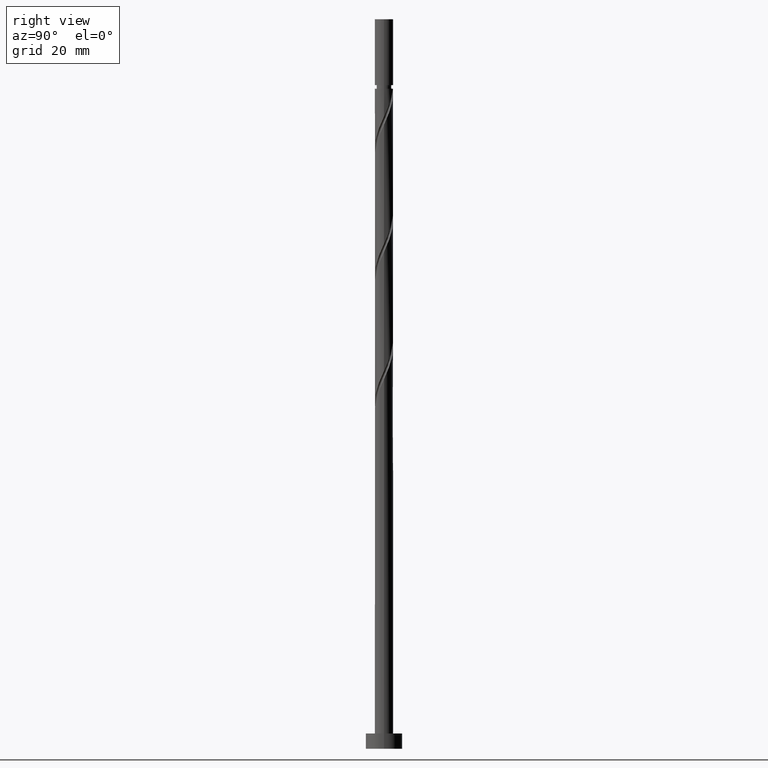
[diagram: clean part render]
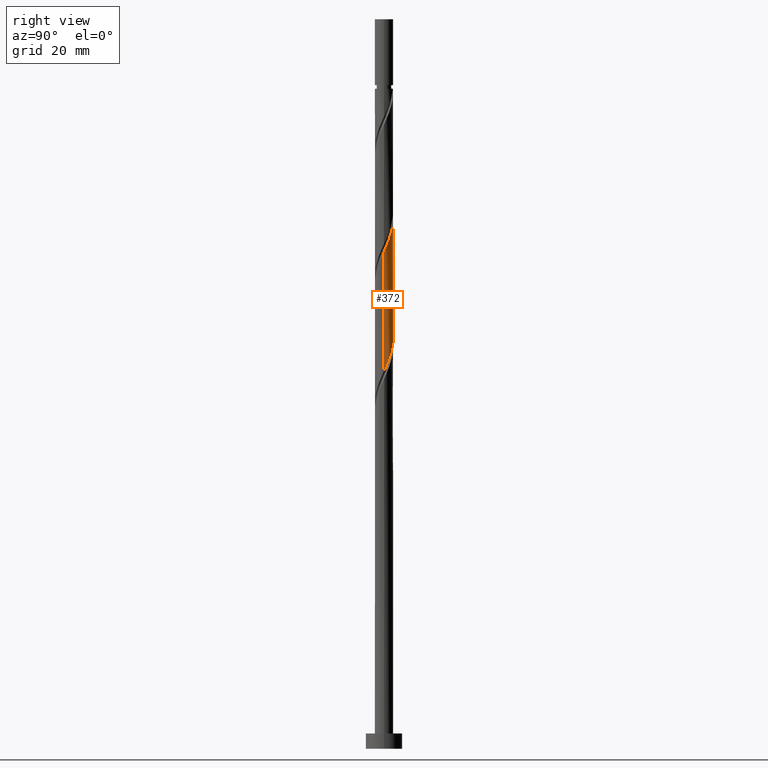
[diagram: same view with one face highlighted and labeled with its STEP entity id]
A machine part, right view. The second image highlights one B-rep face of the part: STEP entity #372.
In plain terms, the highlighted cylindrical surface (edge-blend (fillet) strip) has radius 3 mm, axis along (-0, -0, -1).
Its self-contained STEP definition (entity closure, byte-faithful):
#2 = CARTESIAN_POINT ( 'NONE',  ( -2.177300491905833191, 2.095722369502527993, 178.5441644514406505 ) ) ;
#11 = CARTESIAN_POINT ( 'NONE',  ( 2.537251308848762488, 1.600736016882631674, 166.5249336822098769 ) ) ;
#13 = ORIENTED_EDGE ( 'NONE', *, *, #762, .F. ) ;
#21 = LINE ( 'NONE', #609, #182 ) ;
#30 = CARTESIAN_POINT ( 'NONE',  ( -3.000000000000006661, 0.2437693156111282178, 183.0867982484568302 ) ) ;
#174 = CARTESIAN_POINT ( 'NONE',  ( -2.901834587494014794, 0.8438280090813001788, 181.7492926565687696 ) ) ;
#182 = VECTOR ( 'NONE', #571, 1000.000000000000000 ) ;
#200 = CARTESIAN_POINT ( 'NONE',  ( -2.080442193850956301, 2.161425519892975711, 139.2813439386200400 ) ) ;
#208 = CARTESIAN_POINT ( 'NONE',  ( -1.817997620638346579, 2.414036937049630627, 138.4800618873380245 ) ) ;
#212 = AXIS2_PLACEMENT_3D ( 'NONE', #619, #366, #796 ) ;
#291 = CARTESIAN_POINT ( 'NONE',  ( -2.960644198141485717, 0.4843407189274820390, 182.5505747078508421 ) ) ;
#303 = CARTESIAN_POINT ( 'NONE',  ( 1.187453060654103831, 2.778964719248856241, 170.5313439386201253 ) ) ;
#313 = CARTESIAN_POINT ( 'NONE',  ( -2.615571287713478021, 1.513762372691146441, 180.1467285540047101 ) ) ;
#321 = CARTESIAN_POINT ( 'NONE',  ( 3.000000000000004885, 1.136651328529780996E-15, 162.7931656524717994 ) ) ;
#329 = CARTESIAN_POINT ( 'NONE',  ( -2.731615850633949183, 1.292657931028937224, 141.6851900924662573 ) ) ;
#362 = ORIENTED_EDGE ( 'NONE', *, *, #1415, .F. ) ;
#366 = DIRECTION ( 'NONE',  ( -0.000000000000000000, -0.000000000000000000, -1.000000000000000000 ) ) ;
#372 = ADVANCED_FACE ( 'NONE', ( #1353 ), #475, .T. ) ;
#406 = VERTEX_POINT ( 'NONE', #628 ) ;
#428 = EDGE_CURVE ( 'NONE', #731, #1399, #1364, .T. ) ;
#446 = CARTESIAN_POINT ( 'NONE',  ( -2.758702937603747074, 1.178795190886223754, 180.9480106052868109 ) ) ;
#465 = CARTESIAN_POINT ( 'NONE',  ( -1.894896698789863443, 2.325804484670908501, 177.7428824001585781 ) ) ;
#475 = CYLINDRICAL_SURFACE ( 'NONE', #212, 3.000000000000000444 ) ;
#489 = ORIENTED_EDGE ( 'NONE', *, *, #428, .T. ) ;
#490 = CARTESIAN_POINT ( 'NONE',  ( 0.2400118315905273025, 3.012488008736832867, 133.6723695796457321 ) ) ;
#519 = CARTESIAN_POINT ( 'NONE',  ( 2.901834587494012130, 0.8438280090812966261, 125.6595490668251927 ) ) ;
#545 =( BOUNDED_CURVE ( )  B_SPLINE_CURVE ( 2, ( #1290, #596, #1734, #1182, #1580, #878, #11, #1001, #588, #1571, #742, #303, #1151, #1724, #1307, #1443, #1316, #1168, #1142, #1709, #465, #2, #580, #313, #446, #174, #291, #30, #1598 ),
 .UNSPECIFIED., .F., .T. ) 
 B_SPLINE_CURVE_WITH_KNOTS ( ( 3, 2, 2, 2, 2, 2, 2, 2, 2, 2, 2, 2, 2, 2, 3 ),
 ( 0.4295271625973838270, 0.4326923076923077094, 0.4423076923076922906, 0.4519230769230768718, 0.4615384615384615641, 0.4711538461538461453, 0.4807692307692307265, 0.4903846153846154188, 0.5000000000000000000, 0.5096153846153845812, 0.5192307692307691624, 0.5288461538461538547, 0.5384615384615384359, 0.5480769230769231282, 0.5545271625973835494 ),
 .UNSPECIFIED. ) 
 CURVE ( )  GEOMETRIC_REPRESENTATION_ITEM ( )  RATIONAL_B_SPLINE_CURVE ( ( 0.9061636035682891777, 0.9069090390690778269, 0.9090909090909340406, 0.9024626128164375816, 0.9090909090909340406, 0.9024626128164375816, 0.9090909090909340406, 0.9024626128164375816, 0.9090909090909340406, 0.9024626128164375816, 0.9090909090909340406, 0.9024626128164375816, 0.9090909090909340406, 0.9024626128164375816, 0.9090909090909340406, 0.9024626128164375816, 0.9090909090909340406, 0.9024626128164375816, 0.9090909090909340406, 0.9024626128164375816, 0.9090909090909340406, 0.9024626128164375816, 0.9090909090909340406, 0.9024626128164375816, 0.9090909090909340406, 0.9024626128164375816, 0.9090909090909340406, 0.9046444828382939063, 0.9061636035682889556 ) ) 
 REPRESENTATION_ITEM ( '' )  );
#571 = DIRECTION ( 'NONE',  ( -0.000000000000000000, -0.000000000000000000, -1.000000000000000000 ) ) ;
#580 = CARTESIAN_POINT ( 'NONE',  ( -2.396435889809656050, 1.804742371096836884, 179.3454465027226377 ) ) ;
#588 = CARTESIAN_POINT ( 'NONE',  ( 2.080442193850960741, 2.161425519892978375, 168.1274977847740217 ) ) ;
#596 = CARTESIAN_POINT ( 'NONE',  ( 3.000000000000003997, 0.1193193910103235722, 163.0573365681047733 ) ) ;
#609 = CARTESIAN_POINT ( 'NONE',  ( -3.000000000000000444, 0.000000000000000000, 239.0000000000000284 ) ) ;
#619 = CARTESIAN_POINT ( 'NONE',  ( 0.000000000000000000, 0.000000000000000000, 239.0000000000000284 ) ) ;
#628 = CARTESIAN_POINT ( 'NONE',  ( -3.000000000000004885, -2.946319891057457926E-15, 183.6264989858051422 ) ) ;
#655 = DIRECTION ( 'NONE',  ( -0.000000000000000000, -0.000000000000000000, -1.000000000000000000 ) ) ;
#661 =( BOUNDED_CURVE ( )  B_SPLINE_CURVE ( 2, ( #1464, #1357, #756, #1180, #918, #329, #910, #1485, #200, #208, #774, #926, #1339, #1202, #1768, #490, #1062, #1349, #1793, #1257, #1379, #1218, #1784, #673, #1230, #519, #1239, #1539, #955 ),
 .UNSPECIFIED., .F., .T. ) 
 B_SPLINE_CURVE_WITH_KNOTS ( ( 3, 2, 2, 2, 2, 2, 2, 2, 2, 2, 2, 2, 2, 2, 3 ),
 ( 0.6795271625973833274, 0.6826923076923077094, 0.6923076923076922906, 0.7019230769230768718, 0.7115384615384615641, 0.7211538461538461453, 0.7307692307692307265, 0.7403846153846154188, 0.7500000000000000000, 0.7596153846153845812, 0.7692307692307692735, 0.7788461538461538547, 0.7884615384615384359, 0.7980769230769231282, 0.8045271625973834384 ),
 .UNSPECIFIED. ) 
 CURVE ( )  GEOMETRIC_REPRESENTATION_ITEM ( )  RATIONAL_B_SPLINE_CURVE ( ( 0.9061636035682834045, 0.9069090390690719428, 0.9090909090909286006, 0.9024626128164319194, 0.9090909090909286006, 0.9024626128164319194, 0.9090909090909286006, 0.9024626128164319194, 0.9090909090909286006, 0.9024626128164319194, 0.9090909090909286006, 0.9024626128164319194, 0.9090909090909286006, 0.9024626128164319194, 0.9090909090909286006, 0.9024626128164319194, 0.9090909090909286006, 0.9024626128164319194, 0.9090909090909286006, 0.9024626128164319194, 0.9090909090909286006, 0.9024626128164319194, 0.9090909090909286006, 0.9024626128164319194, 0.9090909090909286006, 0.9024626128164319194, 0.9090909090909286006, 0.9046444828382884662, 0.9061636035682835155 ) ) 
 REPRESENTATION_ITEM ( '' )  );
#673 = CARTESIAN_POINT ( 'NONE',  ( 2.615571287713475801, 1.513762372691141112, 127.2621131693893233 ) ) ;
#731 = VERTEX_POINT ( 'NONE', #321 ) ;
#740 = EDGE_CURVE ( 'NONE', #406, #935, #21, .T. ) ;
#742 = CARTESIAN_POINT ( 'NONE',  ( 1.502725340646227759, 2.596500828149243656, 169.7300618873380245 ) ) ;
#756 = CARTESIAN_POINT ( 'NONE',  ( -2.990523579387028619, 0.2382618751084444875, 144.0890362463123608 ) ) ;
#762 = EDGE_CURVE ( 'NONE', #731, #406, #545, .T. ) ;
#774 = CARTESIAN_POINT ( 'NONE',  ( -1.502725340646223096, 2.596500828149240103, 137.6787798360559520 ) ) ;
#796 = DIRECTION ( 'NONE',  ( -1.000000000000000000, 0.000000000000000000, 0.000000000000000000 ) ) ;
#878 = CARTESIAN_POINT ( 'NONE',  ( 2.731615850633953624, 1.292657931028937224, 165.7236516309277476 ) ) ;
#910 = CARTESIAN_POINT ( 'NONE',  ( -2.537251308848757603, 1.600736016882629231, 140.8839080411841849 ) ) ;
#918 = CARTESIAN_POINT ( 'NONE',  ( -2.846604600309527111, 0.9470175550097439388, 142.4864721437482160 ) ) ;
#926 = CARTESIAN_POINT ( 'NONE',  ( -1.187453060654100945, 2.778964719248853132, 136.8774977847739081 ) ) ;
#935 = VERTEX_POINT ( 'NONE', #1189 ) ;
#955 = CARTESIAN_POINT ( 'NONE',  ( 3.000000000000000000, 4.471825621452718056E-15, 123.7823427375888770 ) ) ;
#1001 = CARTESIAN_POINT ( 'NONE',  ( 2.342886767063572240, 1.908814102736323015, 167.3262157334918641 ) ) ;
#1054 = CARTESIAN_POINT ( 'NONE',  ( 3.000000000000000000, 4.471825621452718056E-15, 123.7823427375888770 ) ) ;
#1062 = CARTESIAN_POINT ( 'NONE',  ( 0.5969924622639739553, 2.939999999999999503, 132.8710875283636597 ) ) ;
#1142 = CARTESIAN_POINT ( 'NONE',  ( -1.283232999305656818, 2.711699295551230016, 176.1403182975944617 ) ) ;
#1151 = CARTESIAN_POINT ( 'NONE',  ( 0.8376755528275017237, 2.880676946169974162, 171.3326259899020840 ) ) ;
#1154 = ORIENTED_EDGE ( 'NONE', *, *, #740, .F. ) ;
#1168 = CARTESIAN_POINT ( 'NONE',  ( -0.9539730929374202750, 2.867511991263171911, 175.3390362463124177 ) ) ;
#1180 = CARTESIAN_POINT ( 'NONE',  ( -2.961593349985107704, 0.6013771789905506537, 143.2877541950303737 ) ) ;
#1182 = CARTESIAN_POINT ( 'NONE',  ( 2.961593349985112145, 0.6013771789905504317, 164.1210875283636597 ) ) ;
#1189 = CARTESIAN_POINT ( 'NONE',  ( -3.000000000000000444, 2.677112997458316276E-15, 144.6156760709221771 ) ) ;
#1202 = CARTESIAN_POINT ( 'NONE',  ( -0.4878980450008948422, 2.982389173091089418, 135.2749336822098201 ) ) ;
#1218 = CARTESIAN_POINT ( 'NONE',  ( 2.177300491905830970, 2.095722369502524440, 128.8646772719534397 ) ) ;
#1230 = CARTESIAN_POINT ( 'NONE',  ( 2.758702937603743077, 1.178795190886219535, 126.4608311181072082 ) ) ;
#1239 = CARTESIAN_POINT ( 'NONE',  ( 2.960644198141480832, 0.4843407189274800406, 124.8582670155431629 ) ) ;
#1257 = CARTESIAN_POINT ( 'NONE',  ( 1.612492905673893251, 2.555886599839282791, 130.4672413745175277 ) ) ;
#1288 = VECTOR ( 'NONE', #655, 1000.000000000000000 ) ;
#1290 = CARTESIAN_POINT ( 'NONE',  ( 3.000000000000004441, 1.136651328529780996E-15, 162.7931656524717994 ) ) ;
#1307 = CARTESIAN_POINT ( 'NONE',  ( 0.1239431067051873087, 2.997438590913965140, 172.9351900924662573 ) ) ;
#1316 = CARTESIAN_POINT ( 'NONE',  ( -0.5969924622639729561, 2.940000000000005276, 174.5377541950304021 ) ) ;
#1339 = CARTESIAN_POINT ( 'NONE',  ( -0.8376755528274979490, 2.880676946169971497, 136.0762157334918641 ) ) ;
#1349 = CARTESIAN_POINT ( 'NONE',  ( 0.9539730929374208301, 2.867511991263167914, 132.0698054770816725 ) ) ;
#1353 = FACE_OUTER_BOUND ( 'NONE', #1574, .T. ) ;
#1357 = CARTESIAN_POINT ( 'NONE',  ( -3.000000000000000444, 0.1193193910103064054, 144.3515051552892032 ) ) ;
#1364 = LINE ( 'NONE', #1787, #1288 ) ;
#1379 = CARTESIAN_POINT ( 'NONE',  ( 1.894896698789862333, 2.325804484670901839, 129.6659593232354268 ) ) ;
#1399 = VERTEX_POINT ( 'NONE', #1054 ) ;
#1415 = EDGE_CURVE ( 'NONE', #935, #1399, #661, .T. ) ;
#1443 = CARTESIAN_POINT ( 'NONE',  ( -0.2400118315905254429, 3.012488008736836864, 173.7364721437483297 ) ) ;
#1464 = CARTESIAN_POINT ( 'NONE',  ( -3.000000000000000444, 2.677112997458316276E-15, 144.6156760709221771 ) ) ;
#1485 = CARTESIAN_POINT ( 'NONE',  ( -2.342886767063568687, 1.908814102736322127, 140.0826259899021125 ) ) ;
#1539 = CARTESIAN_POINT ( 'NONE',  ( 3.000000000000001776, 0.2437693156111303827, 124.3220434749372032 ) ) ;
#1571 = CARTESIAN_POINT ( 'NONE',  ( 1.817997620638351242, 2.414036937049631959, 168.9287798360559805 ) ) ;
#1574 = EDGE_LOOP ( 'NONE', ( #13, #489, #362, #1154 ) ) ;
#1580 = CARTESIAN_POINT ( 'NONE',  ( 2.846604600309534217, 0.9470175550097427175, 164.9223695796457321 ) ) ;
#1598 = CARTESIAN_POINT ( 'NONE',  ( -3.000000000000004885, -2.946319891057457926E-15, 183.6264989858051422 ) ) ;
#1709 = CARTESIAN_POINT ( 'NONE',  ( -1.612492905673894583, 2.555886599839287232, 176.9416003488765057 ) ) ;
#1724 = CARTESIAN_POINT ( 'NONE',  ( 0.4878980450008973957, 2.982389173091093859, 172.1339080411841849 ) ) ;
#1734 = CARTESIAN_POINT ( 'NONE',  ( 2.990523579387033948, 0.2382618751084424058, 163.3198054770816157 ) ) ;
#1768 = CARTESIAN_POINT ( 'NONE',  ( -0.1239431067051839225, 2.997438590913960699, 134.4736516309277192 ) ) ;
#1784 = CARTESIAN_POINT ( 'NONE',  ( 2.396435889809652942, 1.804742371096831999, 128.0633952206713388 ) ) ;
#1787 = CARTESIAN_POINT ( 'NONE',  ( 3.000000000000000444, 3.673940397442060361E-16, 239.0000000000000284 ) ) ;
#1793 = CARTESIAN_POINT ( 'NONE',  ( 1.283232999305657485, 2.711699295551223798, 131.2685234257995432 ) ) ;